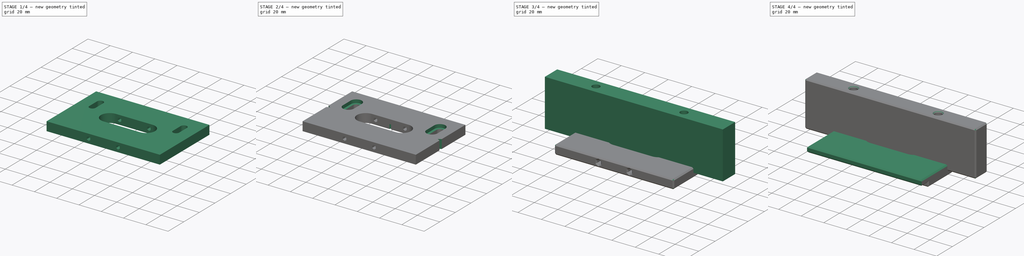
[diagram: build sequence overview — one tinted view per stage of 4, left to right]
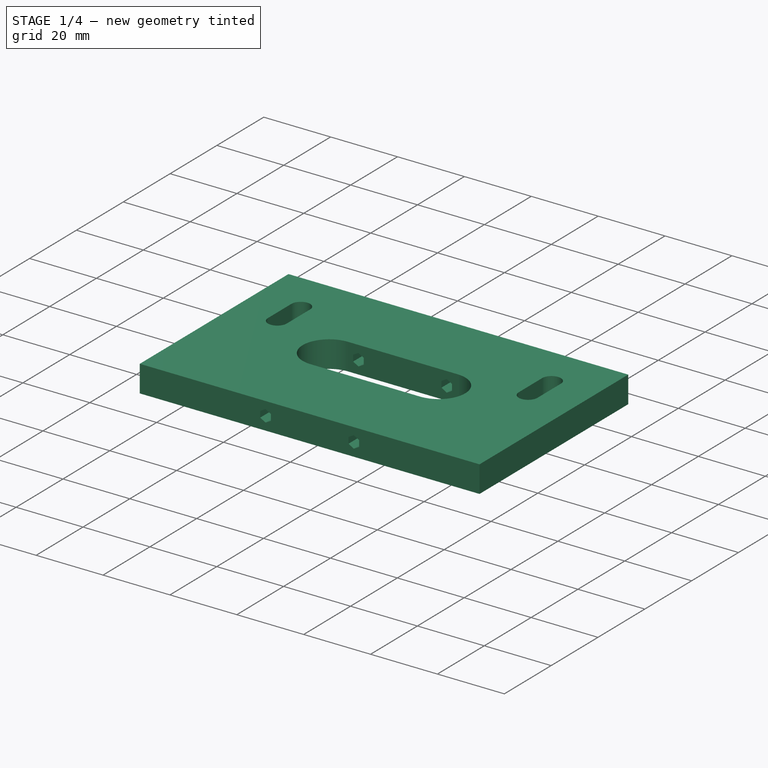
[diagram: stage 1 of 4 — iso view after this stage's code; geometry added in this stage tinted green]
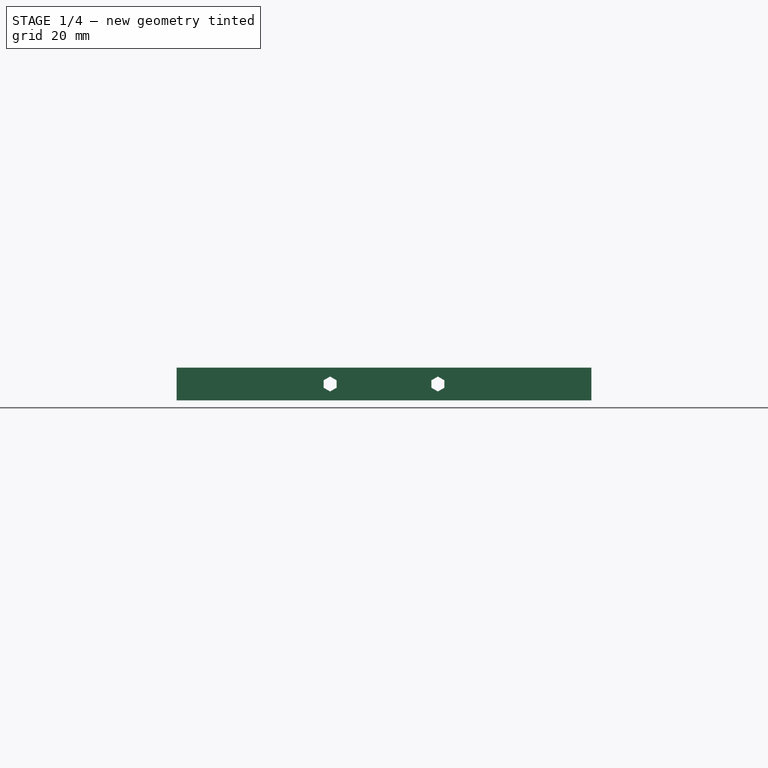
[diagram: stage 1 of 4 — front view after this stage's code; geometry added in this stage tinted green]
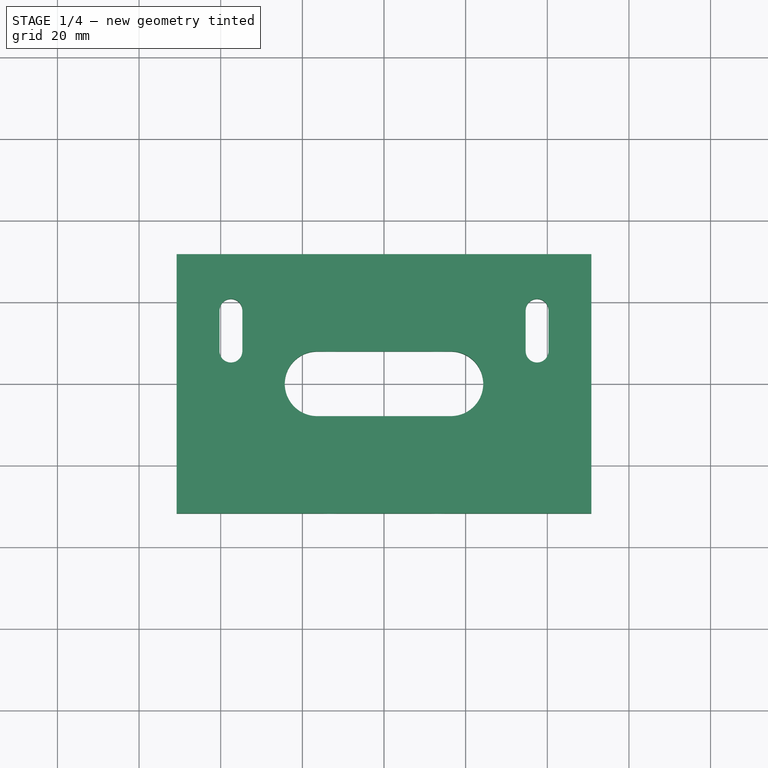
[diagram: stage 1 of 4 — top view after this stage's code; geometry added in this stage tinted green]
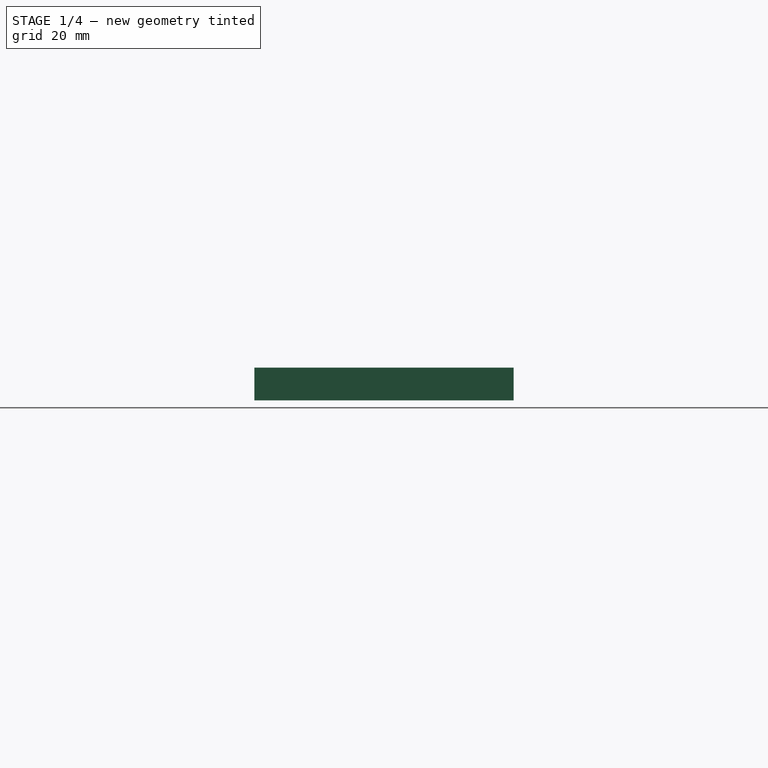
[diagram: stage 1 of 4 — right view after this stage's code; geometry added in this stage tinted green]
FCSTD DOCUMENT  (FreeCAD 0.22R36677 (Git))
Label: template
License: All rights reserved
LicenseURL: http://en.wikipedia.org/wiki/All_rights_reserved
objects: Sketcher::SketchObject×10, PartDesign::Pocket×5, PartDesign::Pad×3, PartDesign::Chamfer×3, PartDesign::Body×3, Spreadsheet::Sheet×1
note: 35 computed .brp shape members not serialized (recipe doc carries the construction recipe); baked Part::Feature solids carry a one-line shape summary decoded from their .brp

FEATURE [PartDesign::Body] Body  label="test"
  Group = -> [Sketch,Sketch001,Sketch002,Pad,Chamfer]
  Origin = -> Origin
  Tip = -> Pad
FEATURE [Sketcher::SketchObject] Sketch005
  AttachmentSupport = -> [XY_Plane001]
  FullyConstrained = true
  MapMode = 5
  expr: Constraints[17] = <<q>>.plate_length
  expr: Constraints[18] = <<q>>.plate_height
  expr: Constraints[6] = <<q>>.major_c2c
  expr: Constraints[7] = <<q>>.height
  sketch-geometry (12):
    g0: ArcOfCircle CenterX=-16.375 CenterY=-1.2e-15 CenterZ=0 NormalX=0 NormalY=0 NormalZ=1 AngleXU=0 Radius=7.9375 StartAngle=1.5708 EndAngle=4.71239
    g1: ArcOfCircle CenterX=16.375 CenterY=-9e-16 CenterZ=0 NormalX=0 NormalY=0 NormalZ=1 AngleXU=0 Radius=7.9375 StartAngle=4.71239 EndAngle=7.85398
    g2: LineSegment StartX=-16.375 StartY=7.9375 StartZ=0 EndX=16.375 EndY=7.9375 EndZ=0
    g3: LineSegment StartX=-16.375 StartY=-7.9375 StartZ=0 EndX=16.375 EndY=-7.9375 EndZ=0
    g4: LineSegment StartX=-50.8 StartY=31.75 StartZ=0 EndX=-50.8 EndY=-31.75 EndZ=0
    g5: LineSegment StartX=-50.8 StartY=-31.75 StartZ=0 EndX=50.8 EndY=-31.75 EndZ=0
    g6: LineSegment StartX=50.8 StartY=-31.75 StartZ=0 EndX=50.8 EndY=31.75 EndZ=0
    g7: LineSegment StartX=50.8 StartY=31.75 StartZ=0 EndX=-50.8 EndY=31.75 EndZ=0
    g8: LineSegment StartX=-75 StartY=9.525 StartZ=0 EndX=-75 EndY=-9.525 EndZ=0
    g9: LineSegment StartX=-75 StartY=-9.525 StartZ=0 EndX=75 EndY=-9.525 EndZ=0
    g10: LineSegment StartX=75 StartY=-9.525 StartZ=0 EndX=75 EndY=9.525 EndZ=0
    g11: LineSegment StartX=75 StartY=9.525 StartZ=0 EndX=-75 EndY=9.525 EndZ=0
  constraints (31):
    c: Tangent(g0,g2) = 1.5708
    c: Tangent(g0,g3) = -1.5708
    c: Tangent(g1,g2) = 1.5708
    c: Tangent(g1,g3) = -1.5708
    c: Equal(g0,g1)
    c: Horizontal(g2)
    c: DistanceX(g0,g1) = 32.75
    c: Diameter(g1) = 15.875
    c: Symmetric(g0,g1,g-1)
    c: Coincident(g4,g5)
    c: Coincident(g5,g6)
    c: Coincident(g6,g7)
    c: Coincident(g7,g4)
    c: Vertical(g4)
    c: Vertical(g6)
    c: Horizontal(g5)
    c: Horizontal(g7)
    c: DistanceX(g7,g7) = 101.6
    c: DistanceY(g6,g6) = 63.5
    c: Symmetric(g4,g6,g-1)
    c: Coincident(g8,g9)
    c: Coincident(g9,g10)
    c: Coincident(g10,g11)
    c: Coincident(g11,g8)
    c: Vertical(g8)
    c: Vertical(g10)
    c: Horizontal(g9)
    c: Horizontal(g11)
    c: DistanceY(g10,g10) = 19.05
    c: DistanceX(g9,g9) = 150
    c: Symmetric(g8,g10,g-1)
FEATURE [PartDesign::Pad] Pad001
  Direction = (0,0,1)
  Length = 8
  Length2 = 10
  Midplane = true
  Profile = -> Sketch005
  ReferenceAxis = -> Sketch005 [N_Axis]
  Suppressed = false
  Type = 0
FEATURE [Sketcher::SketchObject] Sketch006
  AttachmentSupport = -> [XZ_Plane001]
  FullyConstrained = true
  MapMode = 5
  Placement = pos=(0,0,0) rot=(1,0,0;1.5708rad)
  expr: Constraints[37] = <<q>>.minor_length + <<q>>.limit_rod_diameter
  expr: Constraints[38] = <<q>>.limit_rod_diameter
  sketch-geometry (14):
    g0: LineSegment StartX=-11.6125 StartY=-0.916544 StartZ=0 EndX=-11.6125 EndY=0.916544 EndZ=0
    g1: LineSegment StartX=-11.6125 StartY=0.916544 StartZ=0 EndX=-13.2 EndY=1.83309 EndZ=0
    g2: LineSegment StartX=-13.2 StartY=1.83309 StartZ=0 EndX=-14.7875 EndY=0.916544 EndZ=0
    g3: LineSegment StartX=-14.7875 StartY=0.916544 StartZ=0 EndX=-14.7875 EndY=-0.916544 EndZ=0
    g4: LineSegment StartX=-14.7875 StartY=-0.916544 StartZ=0 EndX=-13.2 EndY=-1.83309 EndZ=0
    g5: LineSegment StartX=-13.2 StartY=-1.83309 StartZ=0 EndX=-11.6125 EndY=-0.916544 EndZ=0
    g6: Circle CenterX=-13.2 CenterY=0 CenterZ=0 NormalX=0 NormalY=0 NormalZ=1 AngleXU=0 Radius=1.83309
    g7: LineSegment StartX=13.2 StartY=-1.83309 StartZ=0 EndX=14.7875 EndY=-0.916544 EndZ=0
    g8: LineSegment StartX=14.7875 StartY=-0.916544 StartZ=0 EndX=14.7875 EndY=0.916544 EndZ=0
    g9: LineSegment StartX=14.7875 StartY=0.916544 StartZ=0 EndX=13.2 EndY=1.83309 EndZ=0
    g10: LineSegment StartX=13.2 StartY=1.83309 StartZ=0 EndX=11.6125 EndY=0.916544 EndZ=0
    g11: LineSegment StartX=11.6125 StartY=0.916544 StartZ=0 EndX=11.6125 EndY=-0.916544 EndZ=0
    g12: LineSegment StartX=11.6125 StartY=-0.916544 StartZ=0 EndX=13.2 EndY=-1.83309 EndZ=0
    g13: Circle CenterX=13.2 CenterY=0 CenterZ=0 NormalX=0 NormalY=0 NormalZ=1 AngleXU=0 Radius=1.83309
  constraints (33):
    c: Coincident(g0,g1)
    c: Coincident(g1,g2)
    c: Coincident(g2,g3)
    c: Coincident(g3,g4)
    c: Coincident(g4,g5)
    c: Coincident(g5,g0)
    c: Equal(g0, g1-g5) x5
    c: PointOnObject(g0,g6)
    c: PointOnObject(g1,g6)
    c: PointOnObject(g2,g6)
    c: PointOnObject(g3,g6)
    c: PointOnObject(g4,g6)
    c: PointOnObject(g5,g6)
    c: Coincident(g7,g8)
    c: Coincident(g8,g9)
    c: Coincident(g9,g10)
    c: Coincident(g10,g11)
    c: Coincident(g11,g12)
    c: Coincident(g12,g7)
    c: Equal(g7, g8-g12) x5
    c: PointOnObject(g7,g13)
    c: PointOnObject(g8,g13)
    c: PointOnObject(g9,g13)
    c: PointOnObject(g10,g13)
    c: PointOnObject(g11,g13)
    c: PointOnObject(g12,g13)
    c: Equal(g13,g6)
    c: Vertical(g6,g1)
    c: Vertical(g13,g9)
    c: DistanceX(g6,g13) = 26.4
    c: DistanceX(g3,g0) = 3.175
    c: Symmetric(g6,g13,g-2)
    c: PointOnObject(g13,g-1)
FEATURE [PartDesign::Pocket] Pocket
  BaseFeature = -> Pad001
  Direction = (0,1,-2e-16)
  Length = 5
  Length2 = 5
  Midplane = true
  Profile = -> Sketch006
  ReferenceAxis = -> Sketch006 [N_Axis]
  Suppressed = false
  Type = 1
FEATURE [Sketcher::SketchObject] Sketch007
  AttachmentSupport = -> [XY_Plane001]
  FullyConstrained = false
  MapMode = 5
  sketch-geometry (12):
    g0: LineSegment StartX=-88.1344 StartY=7.02 StartZ=0 EndX=-88.1344 EndY=-7.02 EndZ=0
    g1: LineSegment StartX=-88.1344 StartY=-7.02 StartZ=0 EndX=88.1344 EndY=-7.02 EndZ=0
    g2: LineSegment StartX=88.1344 StartY=-7.02 StartZ=0 EndX=88.1344 EndY=7.02 EndZ=0
    g3: LineSegment StartX=88.1344 StartY=7.02 StartZ=0 EndX=-88.1344 EndY=7.02 EndZ=0
    g4: ArcOfCircle CenterX=-37.5 CenterY=18 CenterZ=0 NormalX=0 NormalY=0 NormalZ=1 AngleXU=0 Radius=2.8 StartAngle=3e-16 EndAngle=3.14159
    g5: ArcOfCircle CenterX=-37.5 CenterY=8 CenterZ=0 NormalX=0 NormalY=0 NormalZ=1 AngleXU=0 Radius=2.8 StartAngle=3.14159 EndAngle=6.28319
    g6: LineSegment StartX=-34.7 StartY=18 StartZ=0 EndX=-34.7 EndY=8 EndZ=0
    g7: LineSegment StartX=-40.3 StartY=18 StartZ=0 EndX=-40.3 EndY=8 EndZ=0
    g8: ArcOfCircle CenterX=37.5 CenterY=18 CenterZ=0 NormalX=0 NormalY=0 NormalZ=1 AngleXU=0 Radius=2.8 StartAngle=3e-16 EndAngle=3.14159
    g9: ArcOfCircle CenterX=37.5 CenterY=8 CenterZ=0 NormalX=0 NormalY=0 NormalZ=1 AngleXU=0 Radius=2.8 StartAngle=3.14159 EndAngle=6.28319
    g10: LineSegment StartX=40.3 StartY=18 StartZ=0 EndX=40.3 EndY=8 EndZ=0
    g11: LineSegment StartX=34.7 StartY=18 StartZ=0 EndX=34.7 EndY=8 EndZ=0
  constraints (29):
    c: Coincident(g0,g1)
    c: Coincident(g1,g2)
    c: Coincident(g2,g3)
    c: Coincident(g3,g0)
    c: Vertical(g0)
    c: Vertical(g2)
    c: Horizontal(g1)
    c: Horizontal(g3)
    c: Symmetric(g0,g2,g-1)
    c: DistanceY(g0,g0) = 14.04
    c: Tangent(g4,g6) = 1.5708
    c: Tangent(g4,g7) = -1.5708
    c: Tangent(g5,g6) = 1.5708
    c: Tangent(g5,g7) = -1.5708
    c: Equal(g4,g5)
    c: Vertical(g7)
    c: Tangent(g8,g10) = 1.5708
    c: Tangent(g8,g11) = -1.5708
    c: Tangent(g9,g10) = 1.5708
    c: Tangent(g9,g11) = -1.5708
    c: Equal(g8,g9)
    c: Vertical(g10)
    c: Symmetric(g5,g9,g-2)
    c: Equal(g6,g11)
    c: Equal(g9,g5)
    c: Diameter(g9) = 5.6
    c: DistanceY(g10,g10) = 10
    c: DistanceY(g-1,g5) = 8
    c: DistanceX(g4,g8) = 75
FEATURE [PartDesign::Pocket] Pocket001
  BaseFeature = -> Pocket
  Direction = (0,0,-1)
  Length = 5
  Length2 = 5
  Midplane = true
  Profile = -> Sketch007
  ReferenceAxis = -> Sketch007 [N_Axis]
  Suppressed = false
  Type = 1
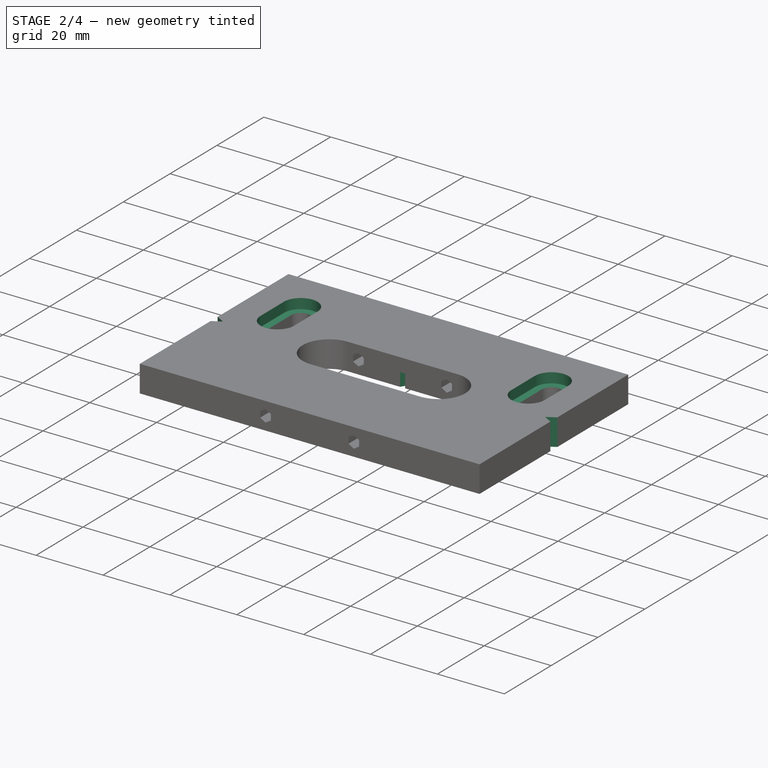
[diagram: stage 2 of 4 — iso view after this stage's code; geometry added in this stage tinted green]
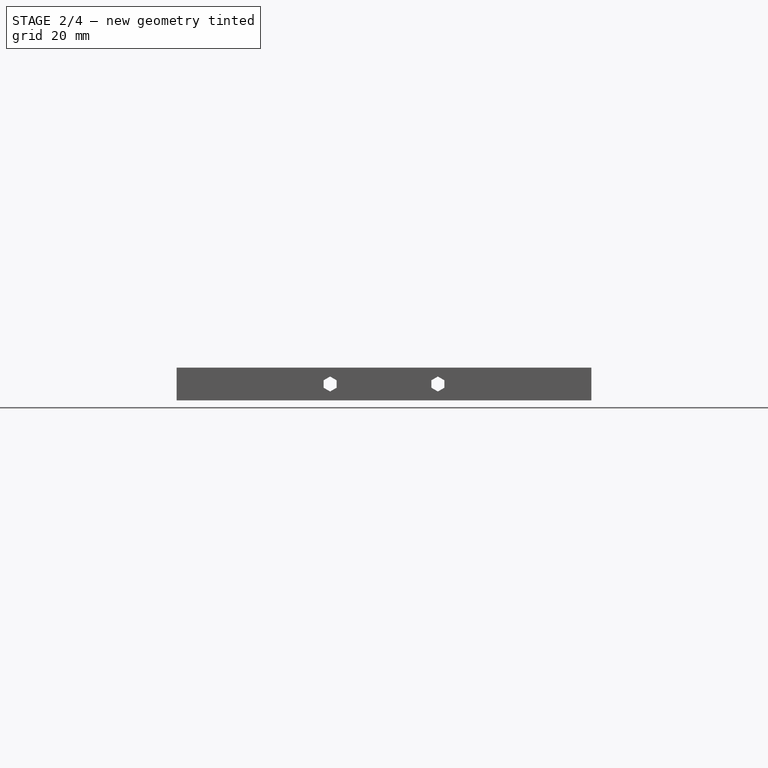
[diagram: stage 2 of 4 — front view after this stage's code; geometry added in this stage tinted green]
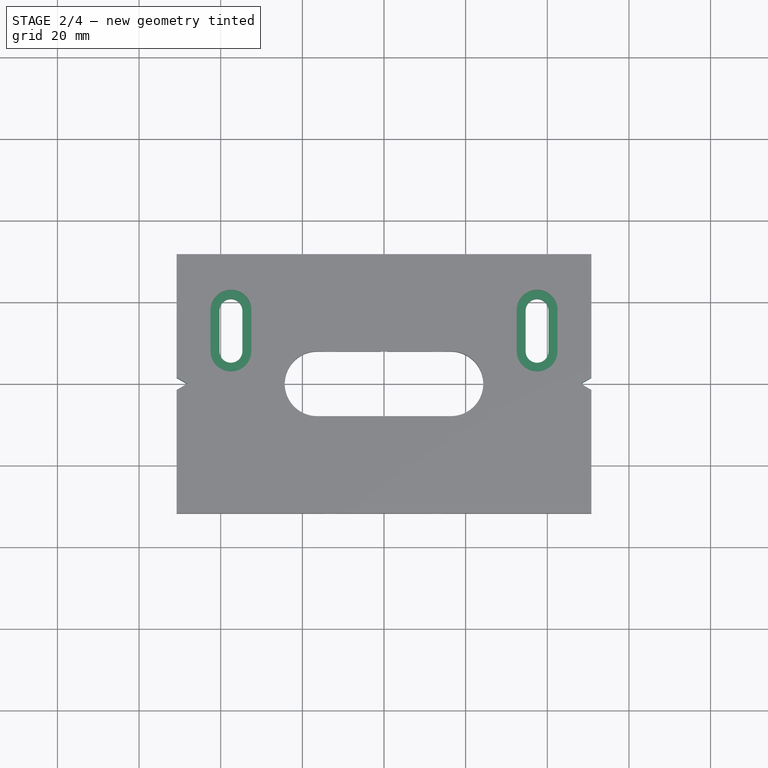
[diagram: stage 2 of 4 — top view after this stage's code; geometry added in this stage tinted green]
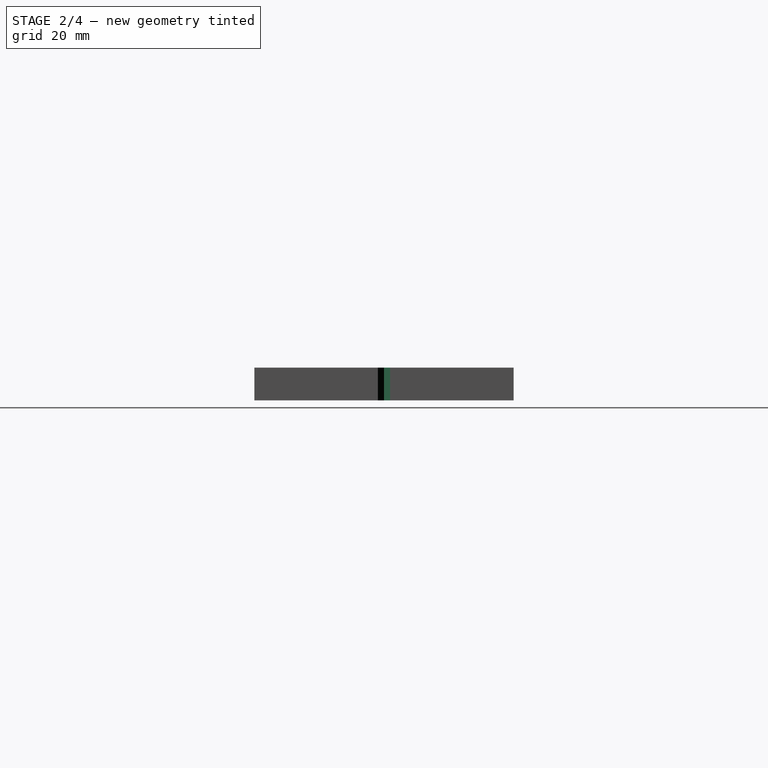
[diagram: stage 2 of 4 — right view after this stage's code; geometry added in this stage tinted green]
FEATURE [Sketcher::SketchObject] Sketch008
  AttachmentSupport = -> [Pocket001]
  ExternalGeometry = -> [Pocket001]
  FullyConstrained = true
  MapMode = 5
  Placement = pos=(0,0,4) rot=(0,0,1;0rad)
  sketch-geometry (8):
    g0: ArcOfCircle CenterX=37.5 CenterY=18 CenterZ=0 NormalX=0 NormalY=0 NormalZ=1 AngleXU=0 Radius=5 StartAngle=0 EndAngle=3.14159
    g1: ArcOfCircle CenterX=37.5 CenterY=8 CenterZ=0 NormalX=0 NormalY=0 NormalZ=1 AngleXU=0 Radius=5 StartAngle=3.14159 EndAngle=6.28319
    g2: LineSegment StartX=42.5 StartY=18 StartZ=0 EndX=42.5 EndY=8 EndZ=0
    g3: LineSegment StartX=32.5 StartY=18 StartZ=0 EndX=32.5 EndY=8 EndZ=0
    g4: ArcOfCircle CenterX=-37.5 CenterY=18 CenterZ=0 NormalX=0 NormalY=0 NormalZ=1 AngleXU=0 Radius=5 StartAngle=0 EndAngle=3.14159
    g5: ArcOfCircle CenterX=-37.5 CenterY=8 CenterZ=0 NormalX=0 NormalY=0 NormalZ=1 AngleXU=0 Radius=5 StartAngle=3.14159 EndAngle=6.28319
    g6: LineSegment StartX=-32.5 StartY=18 StartZ=0 EndX=-32.5 EndY=8 EndZ=0
    g7: LineSegment StartX=-42.5 StartY=18 StartZ=0 EndX=-42.5 EndY=8 EndZ=0
  constraints (17):
    c: Tangent(g0,g2) = 1.5708
    c: Tangent(g0,g3) = -1.5708
    c: Tangent(g1,g2) = 1.5708
    c: Tangent(g1,g3) = -1.5708
    c: Equal(g0,g1)
    c: Tangent(g4,g6) = 1.5708
    c: Tangent(g4,g7) = -1.5708
    c: Tangent(g5,g6) = 1.5708
    c: Tangent(g5,g7) = -1.5708
    c: Equal(g4,g5)
    c: Symmetric(g1,g5,g-2)
    c: Equal(g0,g4)
    c: Equal(g2,g7)
    c: Diameter(g1) = 10
    c: Vertical(g3)
    c: Coincident(g4,g-6)
    c: Coincident(g5,g-5)
FEATURE [PartDesign::Pocket] Pocket002
  BaseFeature = -> Pocket001
  Direction = (0,0,-1)
  Length = 3
  Length2 = 5
  Profile = -> Sketch008
  ReferenceAxis = -> Sketch008 [N_Axis]
  Suppressed = false
  Type = 0
FEATURE [PartDesign::Body] Body002  label="fence"
  Group = -> [Sketch009,Pad002,Chamfer002]
  Origin = -> Origin002
  Tip = -> Chamfer002
FEATURE [Sketcher::SketchObject] Sketch010
  AttachmentSupport = -> [Pocket002]
  ExternalGeometry = -> [Pocket002]
  FullyConstrained = true
  MapMode = 5
  Placement = pos=(0,0,4) rot=(0,0,1;0rad)
  sketch-geometry (6):
    g0: LineSegment StartX=-50.8 StartY=1.5 StartZ=0 EndX=-48.2019 EndY=-2e-16 EndZ=0
    g1: LineSegment StartX=-48.2019 StartY=-2e-16 StartZ=0 EndX=-50.8 EndY=-1.5 EndZ=0
    g2: LineSegment StartX=-50.8 StartY=-1.5 StartZ=0 EndX=-50.8 EndY=1.5 EndZ=0
    g3: LineSegment StartX=48.2019 StartY=4e-16 StartZ=0 EndX=50.8 EndY=1.5 EndZ=0
    g4: LineSegment StartX=50.8 StartY=1.5 StartZ=0 EndX=50.8 EndY=-1.5 EndZ=0
    g5: LineSegment StartX=50.8 StartY=-1.5 StartZ=0 EndX=48.2019 EndY=4e-16 EndZ=0
  constraints (17):
    c: PointOnObject(g0,g-1)
    c: Coincident(g0,g1)
    c: Coincident(g1,g2)
    c: Coincident(g2,g0)
    c: Vertical(g2)
    c: Equal(g2,g0)
    c: Equal(g0,g1)
    c: DistanceY(g2,g2) = 3
    c: Coincident(g3,g4)
    c: Vertical(g4)
    c: Coincident(g4,g5)
    c: Coincident(g5,g3)
    c: DistanceY(g4,g4) = 3
    c: Equal(g4,g3)
    c: Equal(g3,g5)
    c: Symmetric(g3,g0,g-2)
    c: Vertical(g1,g-3)
FEATURE [PartDesign::Pocket] Pocket003
  BaseFeature = -> Pocket002
  Direction = (0,0,-1)
  Length = 5
  Length2 = 5
  Profile = -> Sketch010
  ReferenceAxis = -> Sketch010 [N_Axis]
  Suppressed = false
  Type = 1
FEATURE [Sketcher::SketchObject] Sketch011
  AttachmentSupport = -> [Pocket003]
  ExternalGeometry = -> [Pocket003]
  FullyConstrained = true
  MapMode = 5
  Placement = pos=(0,0,-4) rot=(1,0,0;3.14159rad)
  sketch-geometry (6):
    g0: LineSegment StartX=-0.75 StartY=7.9375 StartZ=0 EndX=0 EndY=9.23654 EndZ=0
    g1: LineSegment StartX=0 StartY=9.23654 StartZ=0 EndX=0.75 EndY=7.9375 EndZ=0
    g2: LineSegment StartX=0.75 StartY=7.9375 StartZ=0 EndX=-0.75 EndY=7.9375 EndZ=0
    g3: LineSegment StartX=-0.75 StartY=-7.9375 StartZ=0 EndX=0.75 EndY=-7.9375 EndZ=0
    g4: LineSegment StartX=0.75 StartY=-7.9375 StartZ=0 EndX=-2e-16 EndY=-9.23654 EndZ=0
    g5: LineSegment StartX=-2e-16 StartY=-9.23654 StartZ=0 EndX=-0.75 EndY=-7.9375 EndZ=0
  constraints (17):
    c: Coincident(g0,g1)
    c: Coincident(g1,g2)
    c: Coincident(g2,g0)
    c: Coincident(g3,g4)
    c: Coincident(g4,g5)
    c: Coincident(g5,g3)
    c: Equal(g1,g0)
    c: Equal(g0,g2)
    c: Equal(g2,g3)
    c: Equal(g3,g4)
    c: Equal(g4,g5)
    c: Horizontal(g2)
    c: Horizontal(g3)
    c: DistanceX(g3,g3) = 1.5
    c: Symmetric(g4,g0,g-1)
    c: PointOnObject(g3,g-3)
    c: PointOnObject(g4,g-2)
FEATURE [PartDesign::Pocket] Pocket004
  BaseFeature = -> Pocket003
  Direction = (0,0,1)
  Length = 4
  Length2 = 5
  Profile = -> Sketch011
  ReferenceAxis = -> Sketch011 [N_Axis]
  Suppressed = false
  Type = 0
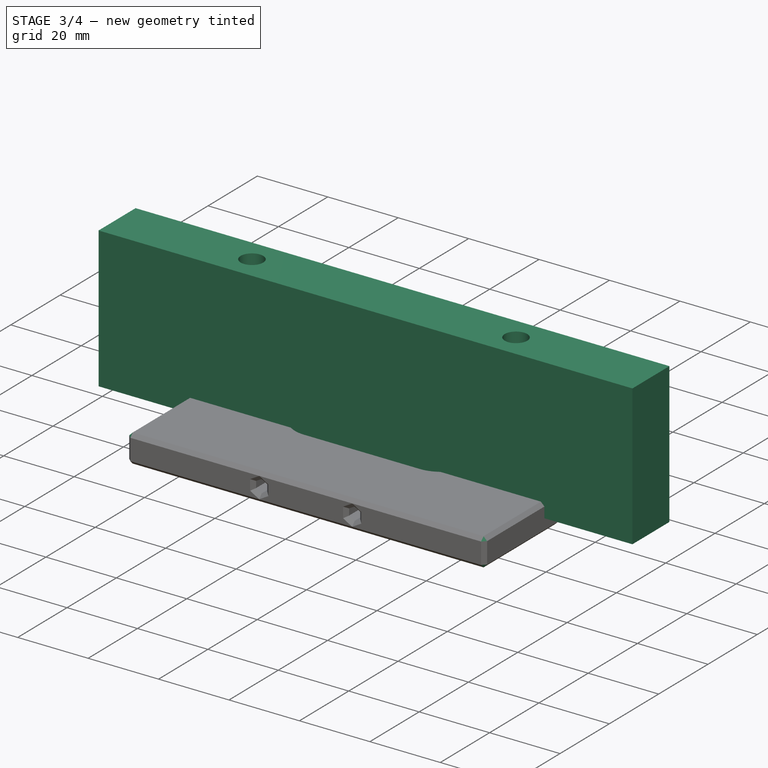
[diagram: stage 3 of 4 — iso view after this stage's code; geometry added in this stage tinted green]
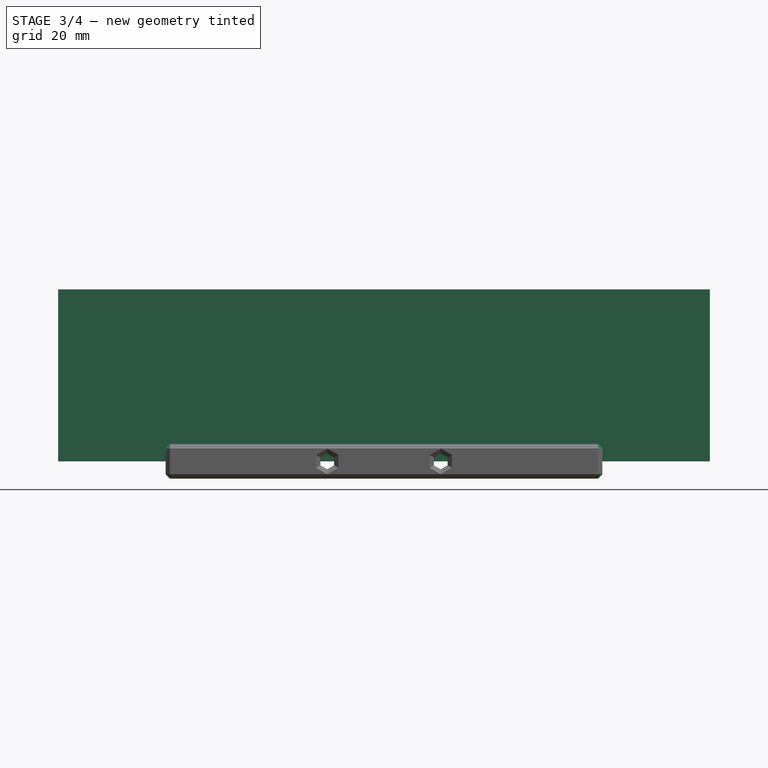
[diagram: stage 3 of 4 — front view after this stage's code; geometry added in this stage tinted green]
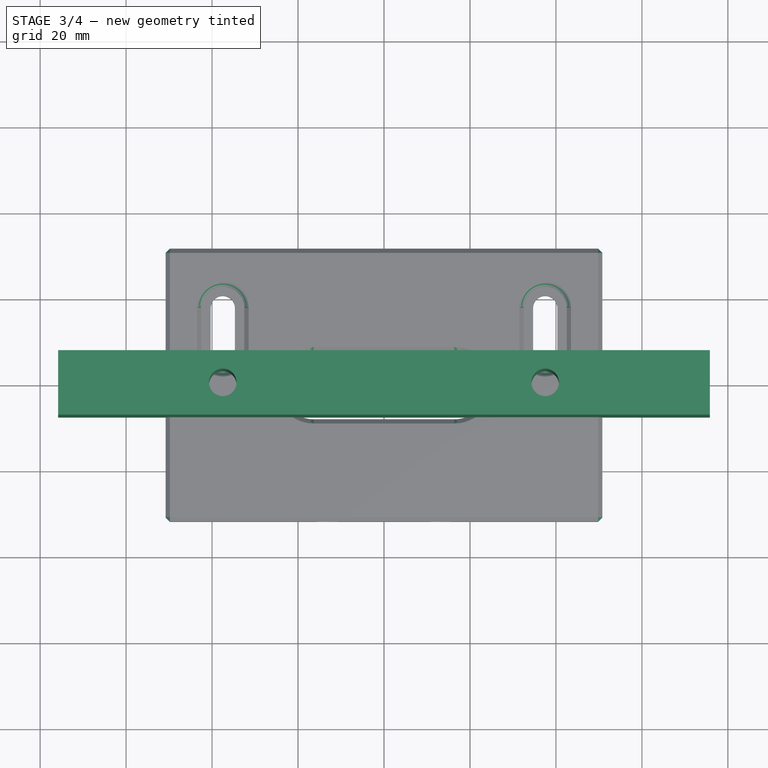
[diagram: stage 3 of 4 — top view after this stage's code; geometry added in this stage tinted green]
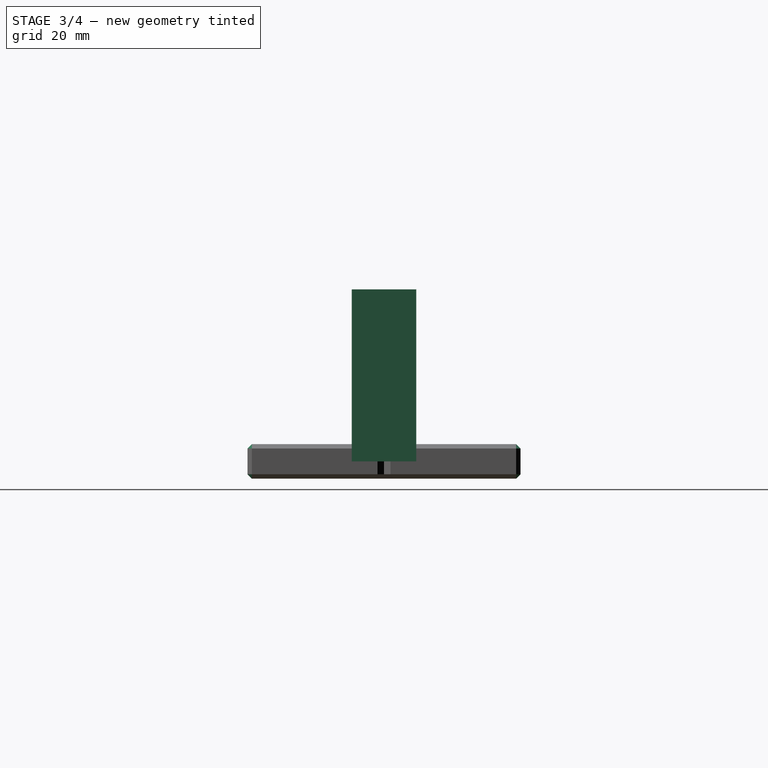
[diagram: stage 3 of 4 — right view after this stage's code; geometry added in this stage tinted green]
FEATURE [Sketcher::SketchObject] Sketch009
  AttachmentSupport = -> [XY_Plane002]
  FullyConstrained = true
  MapMode = 5
  expr: Constraints[8] = <<q>>.plate_length + 50
  sketch-geometry (6):
    g0: LineSegment StartX=-75.8 StartY=7.5 StartZ=0 EndX=-75.8 EndY=-7.5 EndZ=0
    g1: LineSegment StartX=-75.8 StartY=-7.5 StartZ=0 EndX=75.8 EndY=-7.5 EndZ=0
    g2: LineSegment StartX=75.8 StartY=-7.5 StartZ=0 EndX=75.8 EndY=7.5 EndZ=0
    g3: LineSegment StartX=75.8 StartY=7.5 StartZ=0 EndX=-75.8 EndY=7.5 EndZ=0
    g4: Circle CenterX=-37.5 CenterY=0 CenterZ=0 NormalX=0 NormalY=0 NormalZ=1 AngleXU=0 Radius=3.2
    g5: Circle CenterX=37.5 CenterY=0 CenterZ=0 NormalX=0 NormalY=0 NormalZ=1 AngleXU=0 Radius=3.2
  constraints (16):
    c: Coincident(g0,g1)
    c: Coincident(g1,g2)
    c: Coincident(g2,g3)
    c: Coincident(g3,g0)
    c: Vertical(g0)
    c: Vertical(g2)
    c: Horizontal(g1)
    c: Horizontal(g3)
    c: DistanceX(g3,g3) = 151.6
    c: DistanceY(g2,g2) = 15
    c: Symmetric(g0,g2,g-1)
    c: PointOnObject(g4,g-1)
    c: Equal(g4,g5)
    c: Diameter(g4) = 6.4
    c: Symmetric(g4,g5,g-1)
    c: DistanceX(g4,g5) = 75
FEATURE [PartDesign::Pad] Pad002
  Direction = (0,0,1)
  Length = 40
  Length2 = 10
  Profile = -> Sketch009
  ReferenceAxis = -> Sketch009 [N_Axis]
  Suppressed = false
  Type = 0
FEATURE [PartDesign::Chamfer] Chamfer003
  Angle = 45
  Base = -> Pocket004 [Face4,Face5,Face2,Face12]
  BaseFeature = -> Pocket004
  ChamferType = 0
  FlipDirection = false
  Size = 1
  Size2 = 1
  SupportTransform = false
  Suppressed = false
  UseAllEdges = false
FEATURE [PartDesign::Body] Body001  label="plate"
  Group = -> [Sketch005,Pad001,Sketch006,Pocket,Sketch007,Pocket001,Sketch008,Pocket002,Sketch010,Pocket003,Sketch011,Pocket004,Chamfer003]
  Origin = -> Origin001
  Tip = -> Chamfer003
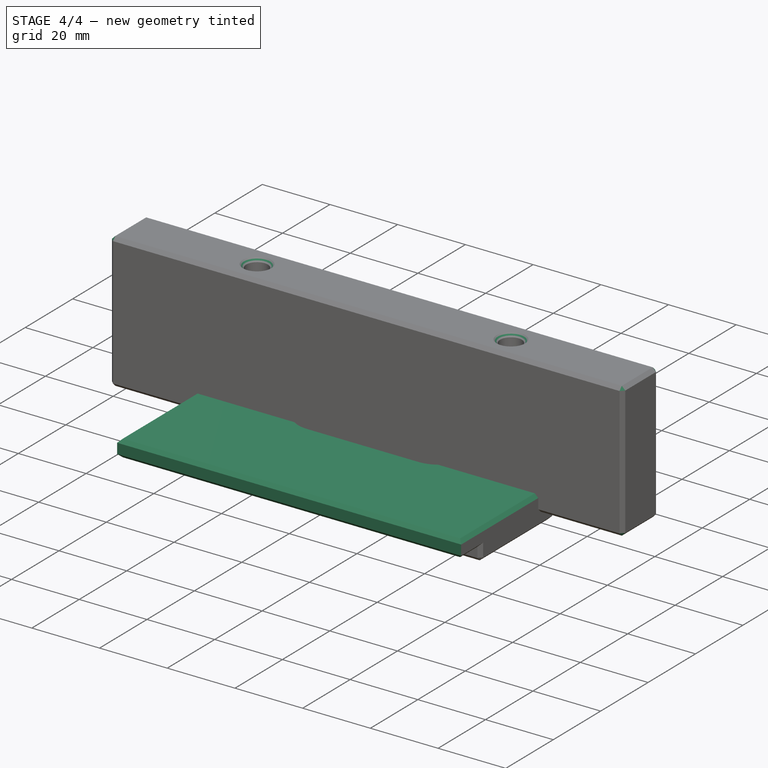
[diagram: stage 4 of 4 — iso view after this stage's code; geometry added in this stage tinted green]
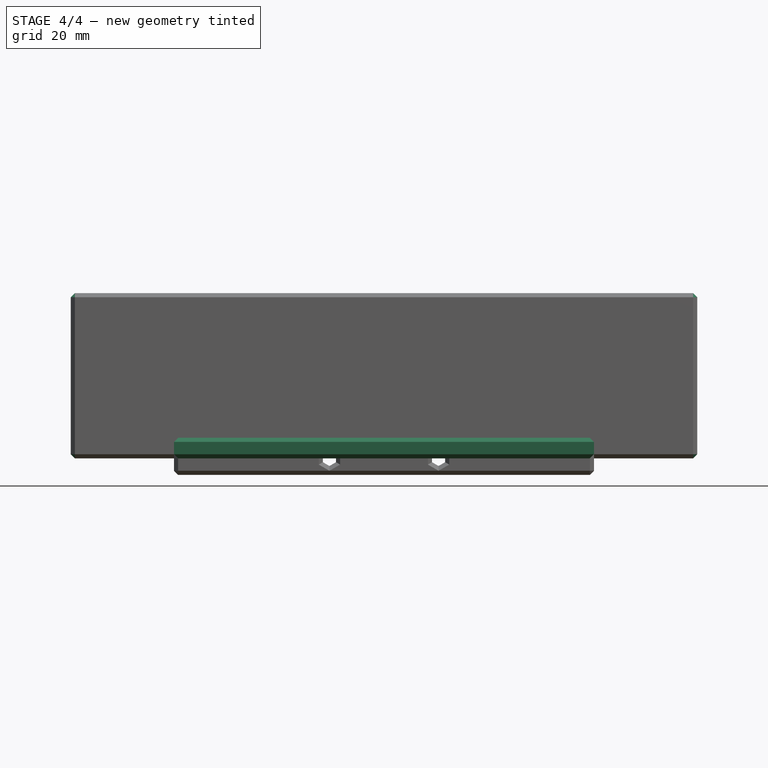
[diagram: stage 4 of 4 — front view after this stage's code; geometry added in this stage tinted green]
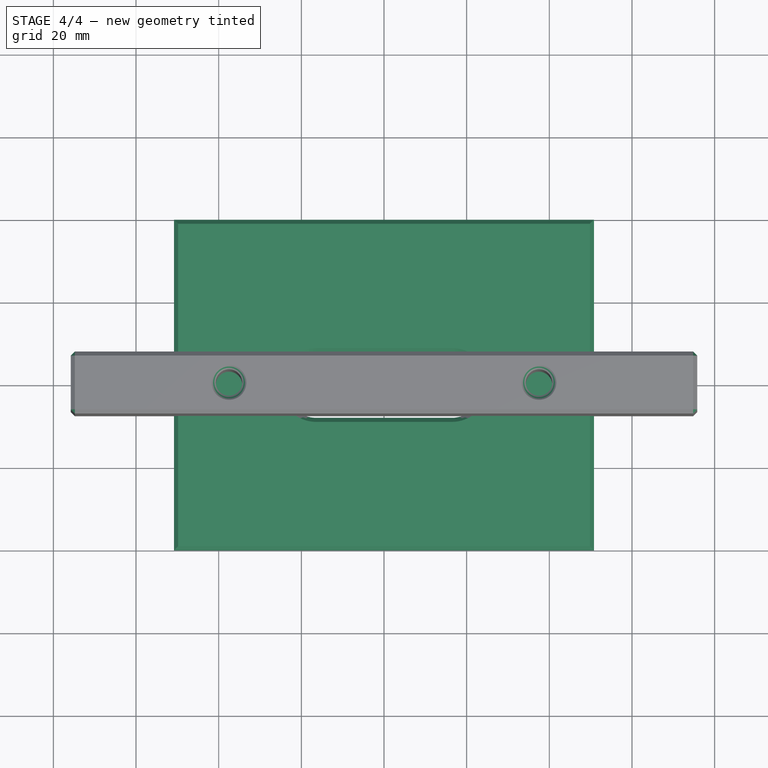
[diagram: stage 4 of 4 — top view after this stage's code; geometry added in this stage tinted green]
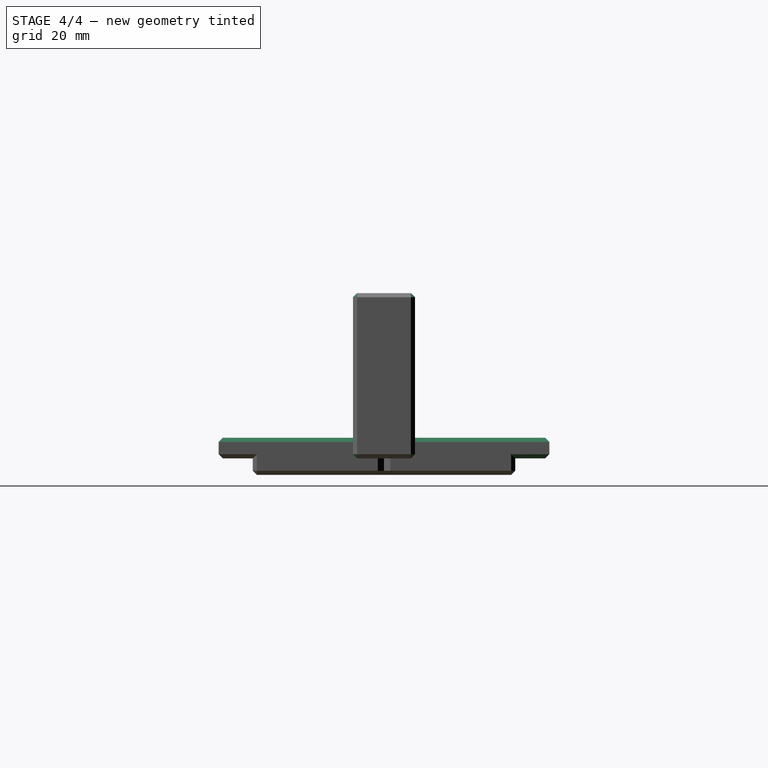
[diagram: stage 4 of 4 — right view after this stage's code; geometry added in this stage tinted green]
FEATURE [Sketcher::SketchObject] Sketch  label="shallow mortise"
  AttachmentSupport = -> [XY_Plane]
  FullyConstrained = true
  MapMode = 5
  sketch-geometry (4):
    g0: ArcOfCircle CenterX=-15.875 CenterY=4e-16 CenterZ=0 NormalX=0 NormalY=0 NormalZ=1 AngleXU=0 Radius=6.35 StartAngle=1.5708 EndAngle=4.71239
    g1: ArcOfCircle CenterX=15.875 CenterY=0 CenterZ=0 NormalX=0 NormalY=0 NormalZ=1 AngleXU=0 Radius=6.35 StartAngle=4.71239 EndAngle=7.85398
    g2: LineSegment StartX=-15.875 StartY=6.35 StartZ=0 EndX=15.875 EndY=6.35 EndZ=0
    g3: LineSegment StartX=-15.875 StartY=-6.35 StartZ=0 EndX=15.875 EndY=-6.35 EndZ=0
  constraints (9):
    c: Tangent(g0,g2) = 1.5708
    c: Tangent(g0,g3) = -1.5708
    c: Tangent(g1,g2) = 1.5708
    c: Tangent(g1,g3) = -1.5708
    c: Equal(g0,g1)
    c: Horizontal(g3)
    c: DistanceX(g0,g1) = 31.75
    c: Diameter(g1) = 12.7
    c: Symmetric(g0,g1,g-1)
FEATURE [Sketcher::SketchObject] Sketch001  label="deep mortise"
  AttachmentSupport = -> [XY_Plane]
  FullyConstrained = true
  MapMode = 5
  sketch-geometry (6):
    g0: ArcOfCircle CenterX=-1.27 CenterY=-3.2815e-12 CenterZ=0 NormalX=0 NormalY=0 NormalZ=1 AngleXU=0 Radius=6.35 StartAngle=1.5708 EndAngle=4.71239
    g1: ArcOfCircle CenterX=1.27 CenterY=-3.2852e-12 CenterZ=0 NormalX=0 NormalY=0 NormalZ=1 AngleXU=0 Radius=6.35 StartAngle=4.71239 EndAngle=7.85398
    g2: LineSegment StartX=-1.27 StartY=6.35 StartZ=0 EndX=1.27 EndY=6.35 EndZ=0
    g3: LineSegment StartX=-1.27 StartY=-6.35 StartZ=0 EndX=1.27 EndY=-6.35 EndZ=0
    g4: GeomPoint X=7.62 Y=-3.2852e-12 Z=0
    g5: GeomPoint X=-7.62 Y=-3.2815e-12 Z=0
  constraints (13):
    c: Tangent(g0,g2) = 1.5708
    c: Tangent(g0,g3) = -1.5708
    c: Tangent(g1,g2) = 1.5708
    c: Tangent(g1,g3) = -1.5708
    c: Equal(g0,g1)
    c: Horizontal(g2)
    c: PointOnObject(g4,g1)
    c: PointOnObject(g5,g0)
    c: Horizontal(g5,g0)
    c: Horizontal(g1,g4)
    c: DistanceX(g5,g4) = 15.24
    c: Diameter(g1) = 12.7
    c: Symmetric(g0,g1,g-1)
FEATURE [Sketcher::SketchObject] Sketch002
  AttachmentSupport = -> [XY_Plane]
  FullyConstrained = true
  MapMode = 5
  expr: Constraints[17] = <<q>>.plate_length
  expr: Constraints[6] = <<q>>.major_c2c
  expr: Constraints[7] = <<q>>.height
  sketch-geometry (14):
    g0: ArcOfCircle CenterX=-16.375 CenterY=-1.3e-15 CenterZ=0 NormalX=0 NormalY=0 NormalZ=1 AngleXU=0 Radius=7.9375 StartAngle=1.5708 EndAngle=4.71239
    g1: ArcOfCircle CenterX=16.375 CenterY=-1.5e-15 CenterZ=0 NormalX=0 NormalY=0 NormalZ=1 AngleXU=0 Radius=7.9375 StartAngle=4.71239 EndAngle=7.85398
    g2: LineSegment StartX=-16.375 StartY=7.9375 StartZ=0 EndX=16.375 EndY=7.9375 EndZ=0
    g3: LineSegment StartX=-16.375 StartY=-7.9375 StartZ=0 EndX=16.375 EndY=-7.9375 EndZ=0
    g4: LineSegment StartX=-50.8 StartY=40 StartZ=0 EndX=-50.8 EndY=-40 EndZ=0
    g5: LineSegment StartX=-50.8 StartY=-40 StartZ=0 EndX=50.8 EndY=-40 EndZ=0
    g6: LineSegment StartX=50.8 StartY=-40 StartZ=0 EndX=50.8 EndY=40 EndZ=0
    g7: LineSegment StartX=50.8 StartY=40 StartZ=0 EndX=-50.8 EndY=40 EndZ=0
    g8: LineSegment StartX=-75 StartY=9.525 StartZ=0 EndX=-75 EndY=-9.525 EndZ=0
    g9: LineSegment StartX=-75 StartY=-9.525 StartZ=0 EndX=75 EndY=-9.525 EndZ=0
    g10: LineSegment StartX=75 StartY=-9.525 StartZ=0 EndX=75 EndY=9.525 EndZ=0
    g11: LineSegment StartX=75 StartY=9.525 StartZ=0 EndX=-75 EndY=9.525 EndZ=0
    g12: GeomPoint X=24.3125 Y=0 Z=0
    g13: GeomPoint X=-24.3125 Y=0 Z=0
  constraints (35):
    c: Tangent(g0,g2) = 1.5708
    c: Tangent(g0,g3) = -1.5708
    c: Tangent(g1,g2) = 1.5708
    c: Tangent(g1,g3) = -1.5708
    c: Equal(g0,g1)
    c: Horizontal(g2)
    c: DistanceX(g0,g1) = 32.75
    c: Diameter(g1) = 15.875
    c: Symmetric(g0,g1,g-1)
    c: Coincident(g4,g5)
    c: Coincident(g5,g6)
    c: Coincident(g6,g7)
    c: Coincident(g7,g4)
    c: Vertical(g4)
    c: Vertical(g6)
    c: Horizontal(g5)
    c: Horizontal(g7)
    c: DistanceX(g7,g7) = 101.6
    c: DistanceY(g6,g6) = 80
    c: Symmetric(g4,g6,g-1)
    c: Coincident(g8,g9)
    c: Coincident(g9,g10)
    c: Coincident(g10,g11)
    c: Coincident(g11,g8)
    c: Vertical(g8)
    c: Vertical(g10)
    c: Horizontal(g9)
    c: Horizontal(g11)
    c: DistanceY(g10,g10) = 19.05
    c: DistanceX(g9,g9) = 150
    c: Symmetric(g8,g10,g-1)
    c: PointOnObject(g12,g1)
    c: PointOnObject(g13,g0)
    c: PointOnObject(g13,g-1)
    c: PointOnObject(g12,g-1)
FEATURE [Spreadsheet::Sheet] Spreadsheet  label="q"
  cells = A2='hinge major length; B2(hinge_major_length)==C2 * 25.4; C2=1.75; A3='hinge minor length; B3(hinge_minor_length)==C3 * 25.4; C3=0.75; A4='hinge height; B4(hinge_height)==C4 * 25.4; C4=0.5; A5='fudge; B5(fudge)=0.5; A6='major length; B6(major_length)==hinge_major_length + guide_offset + fudge * 2; A7='minor length; B7(minor_length)==hinge_minor_length + guide_offset + fudge * 2; A8='height; B8(height)==hinge_height + guide_offset; A9='major c2c; B9(major_c2c)==major_length - height; A10='minor c2c; B10(minor_c2c)==minor_length - height; A13='bit diameter; B13(bit_diameter)==C13 * 25.4; C13=0.25; A14='guide diameter; B14(guide_diameter)==C14 * 25.4; C14=0.375; A15='guide offset; B15(guide_offset)==guide_diameter - bit_diameter; A17='plate height; B17(plate_height)==C17 * 25.4; C17=2.5; A18='plate length; B18(plate_length)==C18 * 25.4; C18=4; A20='limit rod diameter; B20(limit_rod_diameter)==C20 * 25.4; C20=0.125
FEATURE [PartDesign::Pad] Pad
  Direction = (0,0,1)
  Length = 5
  Length2 = 10
  Profile = -> Sketch002
  ReferenceAxis = -> Sketch002 [N_Axis]
  Suppressed = false
  Type = 0
FEATURE [PartDesign::Chamfer] Chamfer
  Angle = 45
  Base = -> Pad [Face10,Face9]
  BaseFeature = -> Pad
  ChamferType = 0
  FlipDirection = false
  Size = 1
  Size2 = 1
  SupportTransform = false
  Suppressed = false
  UseAllEdges = false
FEATURE [PartDesign::Chamfer] Chamfer002
  Angle = 45
  Base = -> Pad002 [Face8,Face7,Face1,Face3]
  BaseFeature = -> Pad002
  ChamferType = 0
  FlipDirection = false
  Size = 1
  Size2 = 1
  SupportTransform = false
  Suppressed = false
  UseAllEdges = false
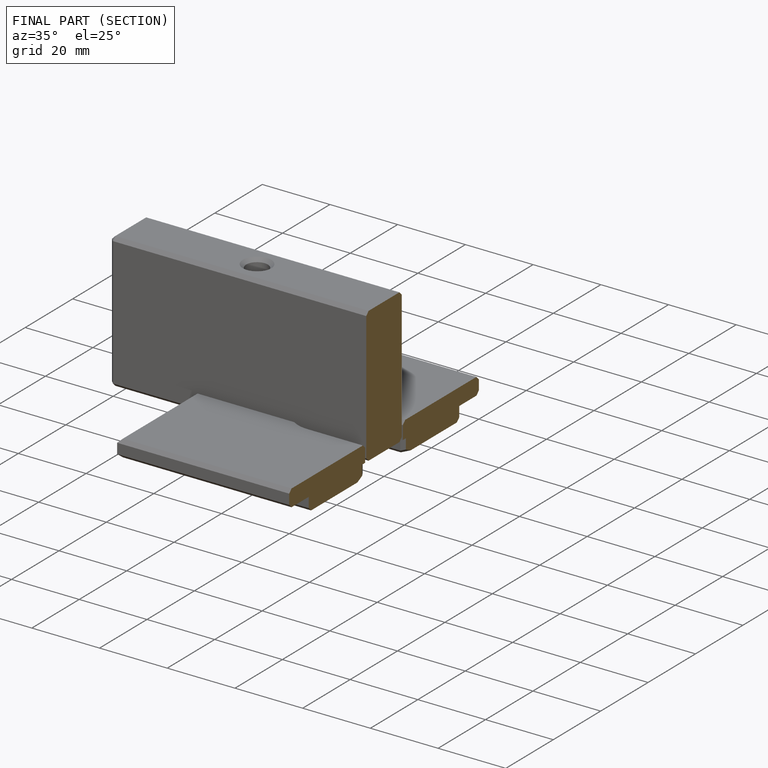
[diagram: finished part — half-section view (interior)]
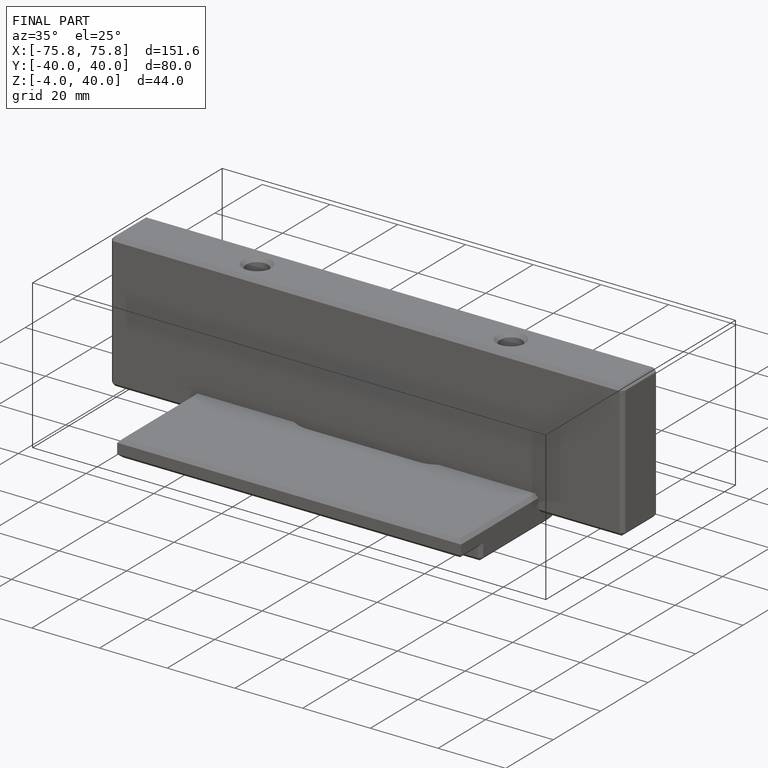
[diagram: finished part — iso view with bounding-box wireframe]
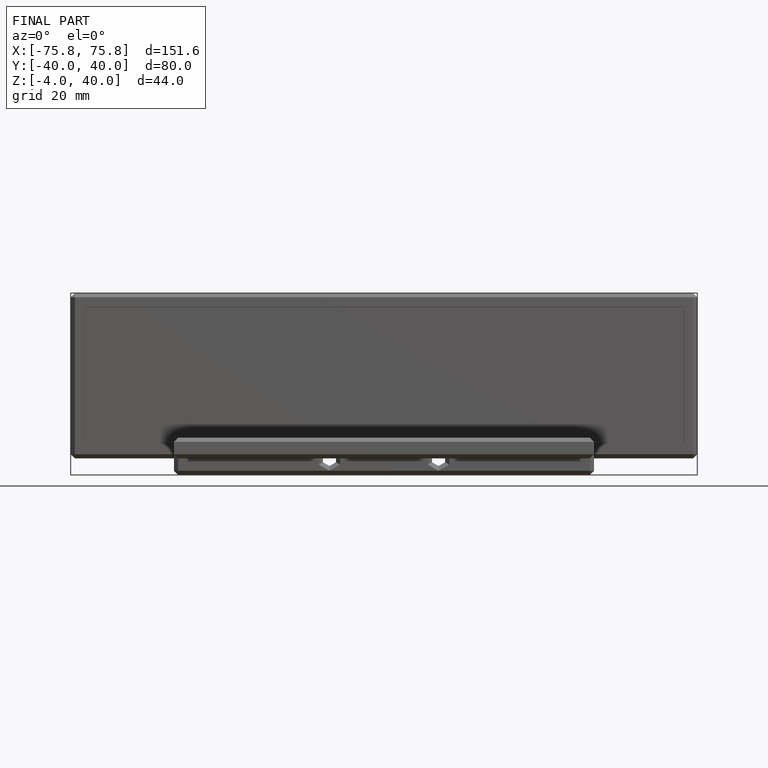
[diagram: finished part — front view with bounding-box wireframe]
